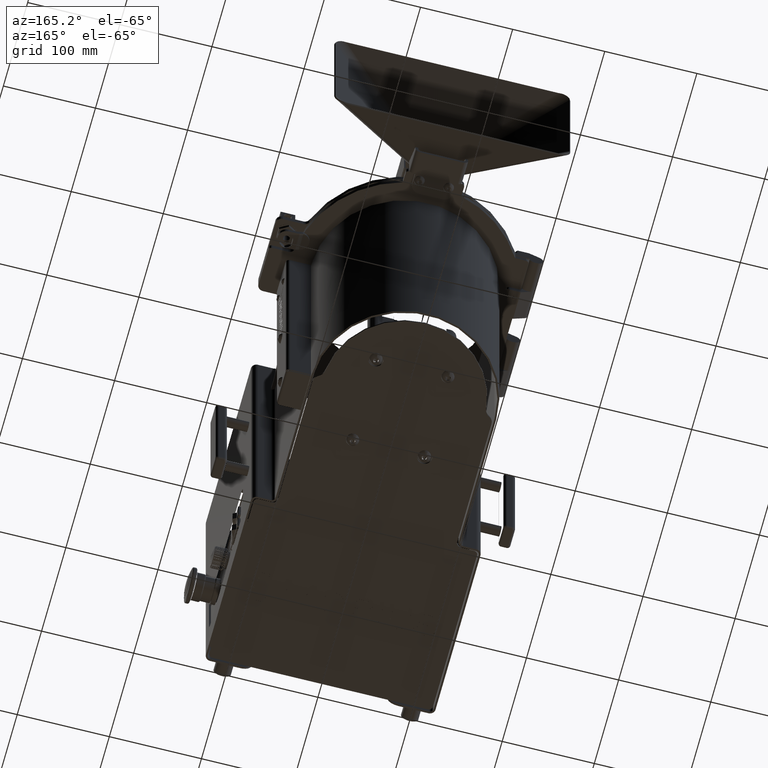
[diagram: clean part render]
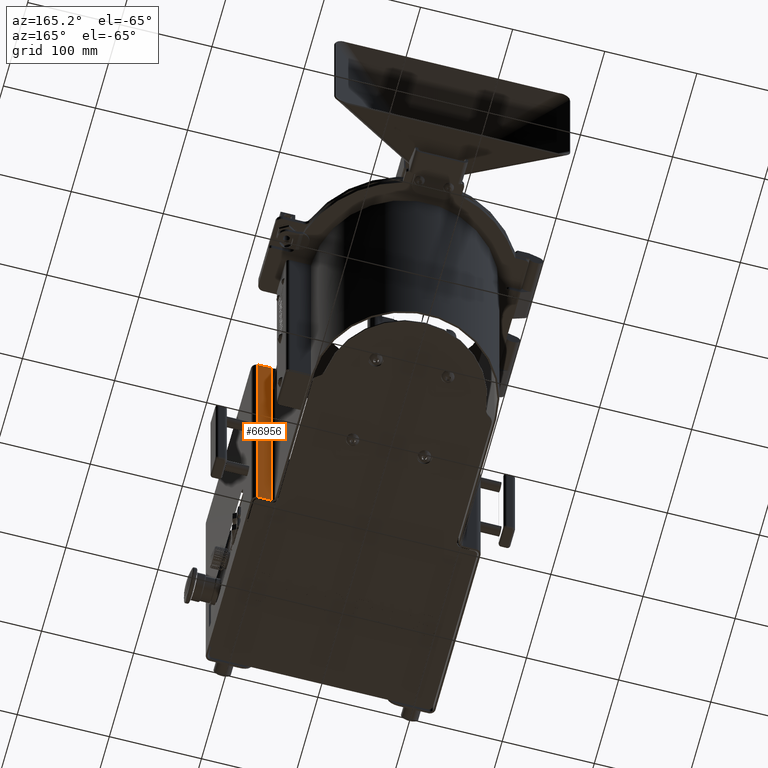
[diagram: same view with one face highlighted and labeled with its STEP entity id]
A machine part, auxiliary view. The second image highlights one B-rep face of the part: STEP entity #66956.
In plain terms, the highlighted planar face has unit normal (0, 1, -0).
Its self-contained STEP definition (entity closure, byte-faithful):
#695 = VECTOR ( 'NONE', #5069, 39.37007874015748143 ) ;
#5069 = DIRECTION ( 'NONE',  ( -0.000000000000000000, -0.000000000000000000, -1.000000000000000000 ) ) ;
#12220 = CARTESIAN_POINT ( 'NONE',  ( -2.844669555080007817E-17, 0.07810000000001239562, -7.075450120509821736E-46 ) ) ;
#13098 = VERTEX_POINT ( 'NONE', #62800 ) ;
#15211 = EDGE_CURVE ( 'NONE', #13098, #19466, #17380, .T. ) ;
#17380 = LINE ( 'NONE', #12220, #75671 ) ;
#19466 = VERTEX_POINT ( 'NONE', #78124 ) ;
#20253 = EDGE_CURVE ( 'NONE', #53201, #19466, #63082, .T. ) ;
#21578 = CARTESIAN_POINT ( 'NONE',  ( 4.672432310000004030, 0.07809999999999742148, 12.92559999999999754 ) ) ;
#21894 = VERTEX_POINT ( 'NONE', #21578 ) ;
#22136 = EDGE_LOOP ( 'NONE', ( #78174, #35923, #40166, #43528, #43664 ) ) ;
#22205 = LINE ( 'NONE', #53691, #65976 ) ;
#27251 = EDGE_CURVE ( 'NONE', #21894, #13098, #35766, .T. ) ;
#27974 = VERTEX_POINT ( 'NONE', #43837 ) ;
#29717 = VECTOR ( 'NONE', #44033, 39.37007874015748143 ) ;
#30475 = VECTOR ( 'NONE', #44673, 39.37007874015748143 ) ;
#31594 = CARTESIAN_POINT ( 'NONE',  ( 4.108099999999999419, 0.07809999999999950315, -1.092739197465705287E-15 ) ) ;
#35766 = LINE ( 'NONE', #42913, #695 ) ;
#35923 = ORIENTED_EDGE ( 'NONE', *, *, #27251, .T. ) ;
#38391 = CARTESIAN_POINT ( 'NONE',  ( -2.844669555080007817E-17, 0.07810000000001239562, -7.075450120509821736E-46 ) ) ;
#40166 = ORIENTED_EDGE ( 'NONE', *, *, #15211, .T. ) ;
#41446 = EDGE_CURVE ( 'NONE', #27974, #53201, #22205, .T. ) ;
#42913 = CARTESIAN_POINT ( 'NONE',  ( 4.672432310000004030, 0.07809999999999742148, 12.92559999999999754 ) ) ;
#43528 = ORIENTED_EDGE ( 'NONE', *, *, #20253, .F. ) ;
#43664 = ORIENTED_EDGE ( 'NONE', *, *, #41446, .F. ) ;
#43837 = CARTESIAN_POINT ( 'NONE',  ( 4.108099999999999419, 0.07809999999999950315, 12.92559999999999754 ) ) ;
#44033 = DIRECTION ( 'NONE',  ( 1.000000000000000000, -3.127247080829831793E-15, 0.000000000000000000 ) ) ;
#44673 = DIRECTION ( 'NONE',  ( 0.000000000000000000, 0.000000000000000000, -1.000000000000000000 ) ) ;
#52714 = AXIS2_PLACEMENT_3D ( 'NONE', #38391, #56388, #62776 ) ;
#53201 = VERTEX_POINT ( 'NONE', #75852 ) ;
#53691 = CARTESIAN_POINT ( 'NONE',  ( 4.108099999999999419, 0.07809999999999944764, 12.92559999999999754 ) ) ;
#54075 = DIRECTION ( 'NONE',  ( -1.000000000000000000, 3.127247080829831793E-15, 3.304102336072433781E-16 ) ) ;
#56388 = DIRECTION ( 'NONE',  ( 3.127247080829831793E-15, 1.000000000000000000, -5.710259942610068743E-32 ) ) ;
#56796 = EDGE_CURVE ( 'NONE', #27974, #21894, #74501, .T. ) ;
#62776 = DIRECTION ( 'NONE',  ( -1.000000000000000000, 3.127247080829831793E-15, 0.000000000000000000 ) ) ;
#62800 = CARTESIAN_POINT ( 'NONE',  ( 4.672432310000003142, 0.07809999999999778231, -1.543819451061132903E-15 ) ) ;
#62832 = CARTESIAN_POINT ( 'NONE',  ( -2.844669555080007817E-17, 0.07810000000001239562, 12.92559999999999754 ) ) ;
#63082 = LINE ( 'NONE', #31594, #30475 ) ;
#63969 = PLANE ( 'NONE',  #52714 ) ;
#65976 = VECTOR ( 'NONE', #78550, 39.37007874015748143 ) ;
#66956 = ADVANCED_FACE ( 'NONE', ( #68826 ), #63969, .T. ) ;
#68826 = FACE_OUTER_BOUND ( 'NONE', #22136, .T. ) ;
#74501 = LINE ( 'NONE', #62832, #29717 ) ;
#75671 = VECTOR ( 'NONE', #54075, 39.37007874015748143 ) ;
#75852 = CARTESIAN_POINT ( 'NONE',  ( 4.108099999999999419, 0.07809999999999950315, 10.81259999999999977 ) ) ;
#78124 = CARTESIAN_POINT ( 'NONE',  ( 4.108099999999999419, 0.07809999999999950315, -8.857091689033316842E-16 ) ) ;
#78174 = ORIENTED_EDGE ( 'NONE', *, *, #56796, .T. ) ;
#78550 = DIRECTION ( 'NONE',  ( -1.785739373630685924E-46, -5.710259942610068743E-32, -1.000000000000000000 ) ) ;